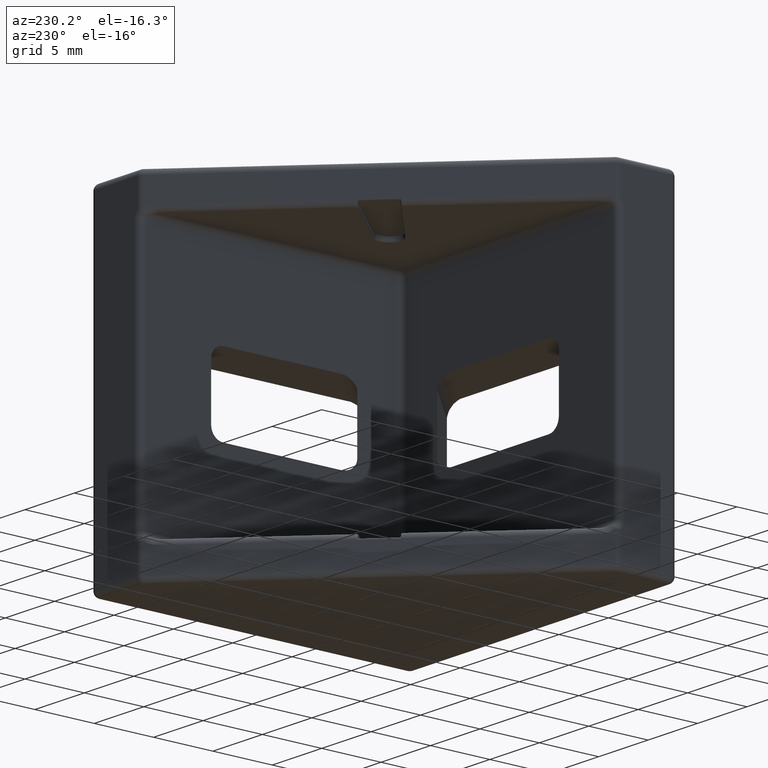
[diagram: clean part render]
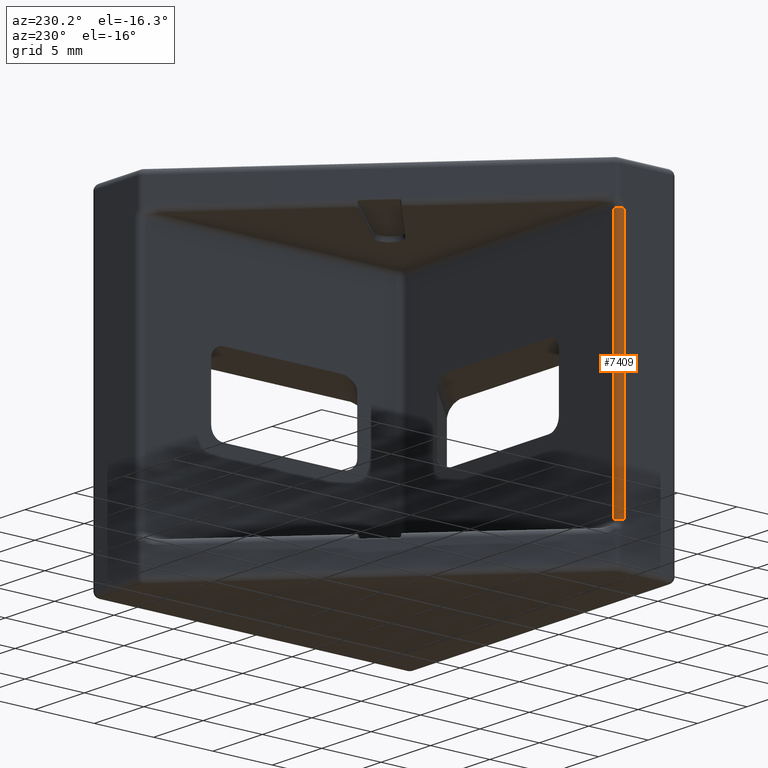
[diagram: same view with one face highlighted and labeled with its STEP entity id]
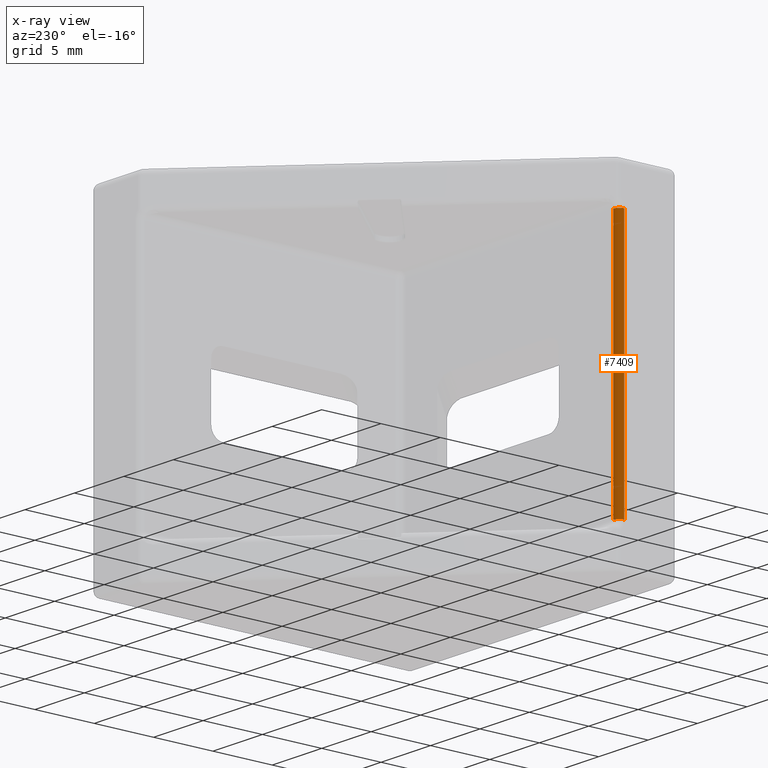
[diagram: x-ray of the same camera — body ghosted, the highlighted face saturated]
A machine part, auxiliary view. The second image highlights one B-rep face of the part: STEP entity #7409.
The next image is the same camera in x-ray: the body ghosted, the highlighted face saturated — about 0% of this face is hidden behind the body in this view.
In plain terms, the highlighted cylindrical surface (edge-blend (fillet) strip) has radius 0.5 mm, axis along (0, 0, 1).
Its self-contained STEP definition (entity closure, byte-faithful):
#25 = CARTESIAN_POINT ( 'NONE',  ( -26.49999999999999300, 4.499999999999997300, 10.49999999999999800 ) ) ;
#75 = CIRCLE ( 'NONE', #7533, 0.5000000000000004400 ) ;
#1128 = VECTOR ( 'NONE', #10121, 1000.000000000000000 ) ;
#1523 = CARTESIAN_POINT ( 'NONE',  ( -26.99999999999999300, 4.499999999999997300, 10.49999999999999800 ) ) ;
#1689 = ORIENTED_EDGE ( 'NONE', *, *, #8639, .F. ) ;
#2290 = CARTESIAN_POINT ( 'NONE',  ( -26.49999999999999300, 4.999999999999997300, 0.0000000000000000000 ) ) ;
#2534 = AXIS2_PLACEMENT_3D ( 'NONE', #25, #4942, #8090 ) ;
#2614 = VERTEX_POINT ( 'NONE', #5828 ) ;
#2716 = FACE_OUTER_BOUND ( 'NONE', #6221, .T. ) ;
#2937 = CARTESIAN_POINT ( 'NONE',  ( -26.99999999999999300, 4.499999999999997300, 14.00000000000000000 ) ) ;
#3628 = CARTESIAN_POINT ( 'NONE',  ( -26.49999999999999300, 4.499999999999997300, 0.0000000000000000000 ) ) ;
#3942 = DIRECTION ( 'NONE',  ( 0.0000000000000000000, 0.0000000000000000000, 1.000000000000000000 ) ) ;
#4277 = DIRECTION ( 'NONE',  ( 0.0000000000000000000, 3.469446951953610600E-015, -1.000000000000000000 ) ) ;
#4312 = DIRECTION ( 'NONE',  ( 1.000000000000000000, 0.0000000000000000000, 0.0000000000000000000 ) ) ;
#4370 = LINE ( 'NONE', #2290, #6752 ) ;
#4747 = EDGE_CURVE ( 'NONE', #10247, #5373, #8484, .T. ) ;
#4942 = DIRECTION ( 'NONE',  ( 0.0000000000000000000, 0.0000000000000000000, -1.000000000000000000 ) ) ;
#5048 = LINE ( 'NONE', #2937, #1128 ) ;
#5373 = VERTEX_POINT ( 'NONE', #7692 ) ;
#5568 = CARTESIAN_POINT ( 'NONE',  ( -26.49999999999999300, 4.999999999999997300, -10.49999999999999800 ) ) ;
#5828 = CARTESIAN_POINT ( 'NONE',  ( -26.99999999999999300, 4.499999999999997300, -10.50000000000000000 ) ) ;
#5882 = CARTESIAN_POINT ( 'NONE',  ( -26.49999999999999300, 4.499999999999997300, -10.50000000000000000 ) ) ;
#6221 = EDGE_LOOP ( 'NONE', ( #7860, #7935, #6683, #1689 ) ) ;
#6683 = ORIENTED_EDGE ( 'NONE', *, *, #8922, .F. ) ;
#6752 = VECTOR ( 'NONE', #3942, 1000.000000000000000 ) ;
#7409 = ADVANCED_FACE ( 'NONE', ( #2716 ), #9906, .T. ) ;
#7533 = AXIS2_PLACEMENT_3D ( 'NONE', #5882, #4277, #8235 ) ;
#7692 = CARTESIAN_POINT ( 'NONE',  ( -26.49999999999999300, 4.999999999999997300, 10.49999999999999800 ) ) ;
#7757 = VERTEX_POINT ( 'NONE', #5568 ) ;
#7860 = ORIENTED_EDGE ( 'NONE', *, *, #4747, .T. ) ;
#7935 = ORIENTED_EDGE ( 'NONE', *, *, #10195, .F. ) ;
#8090 = DIRECTION ( 'NONE',  ( -1.000000000000000000, 0.0000000000000000000, 0.0000000000000000000 ) ) ;
#8235 = DIRECTION ( 'NONE',  ( 0.0000000000000000000, 1.000000000000000000, 3.469446951953611000E-015 ) ) ;
#8305 = DIRECTION ( 'NONE',  ( 0.0000000000000000000, 0.0000000000000000000, 1.000000000000000000 ) ) ;
#8484 = CIRCLE ( 'NONE', #2534, 0.5000000000000004400 ) ;
#8639 = EDGE_CURVE ( 'NONE', #10247, #2614, #5048, .T. ) ;
#8922 = EDGE_CURVE ( 'NONE', #2614, #7757, #75, .T. ) ;
#9148 = AXIS2_PLACEMENT_3D ( 'NONE', #3628, #8305, #4312 ) ;
#9906 = CYLINDRICAL_SURFACE ( 'NONE', #9148, 0.5000000000000004400 ) ;
#10121 = DIRECTION ( 'NONE',  ( -0.0000000000000000000, -0.0000000000000000000, -1.000000000000000000 ) ) ;
#10195 = EDGE_CURVE ( 'NONE', #7757, #5373, #4370, .T. ) ;
#10247 = VERTEX_POINT ( 'NONE', #1523 ) ;